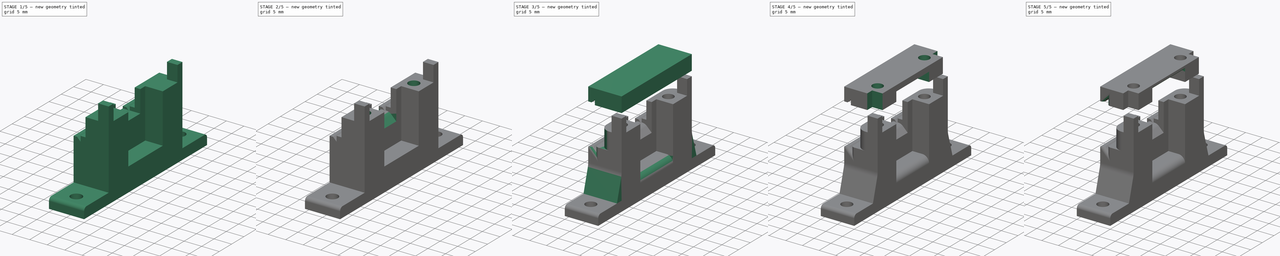
[diagram: build sequence overview — one tinted view per stage of 5, left to right]
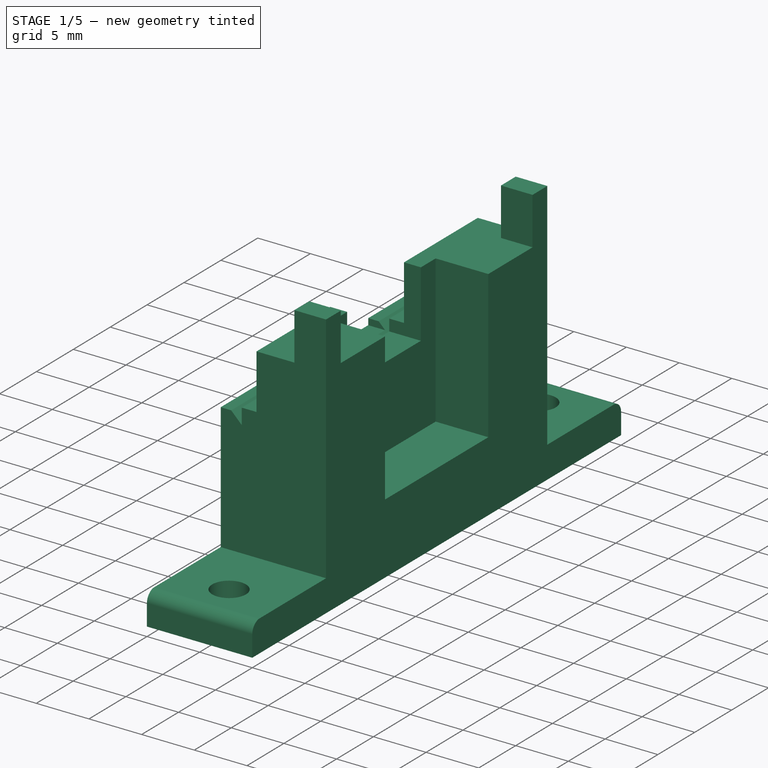
[diagram: stage 1 of 5 — iso view after this stage's code; geometry added in this stage tinted green]
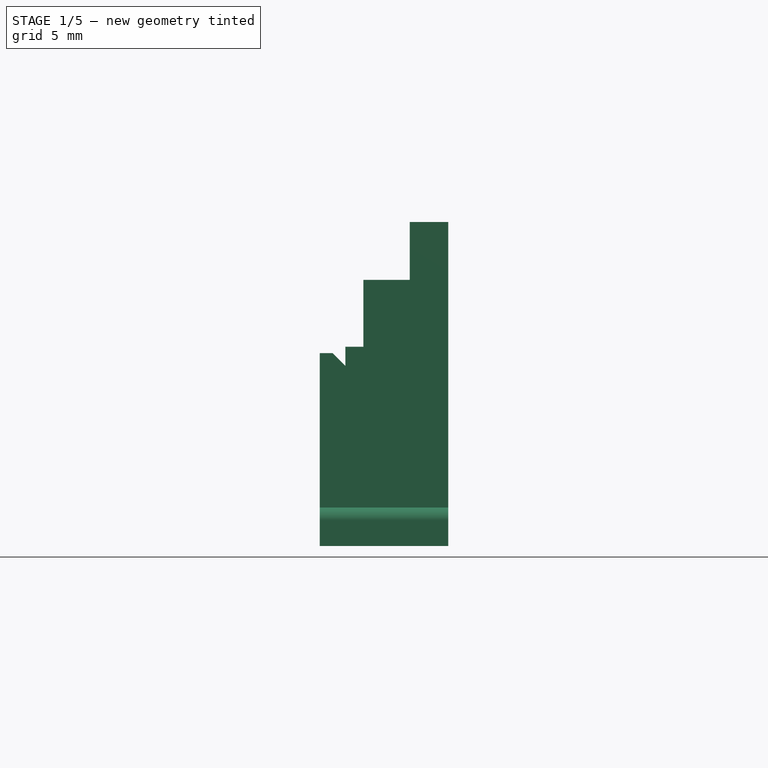
[diagram: stage 1 of 5 — front view after this stage's code; geometry added in this stage tinted green]
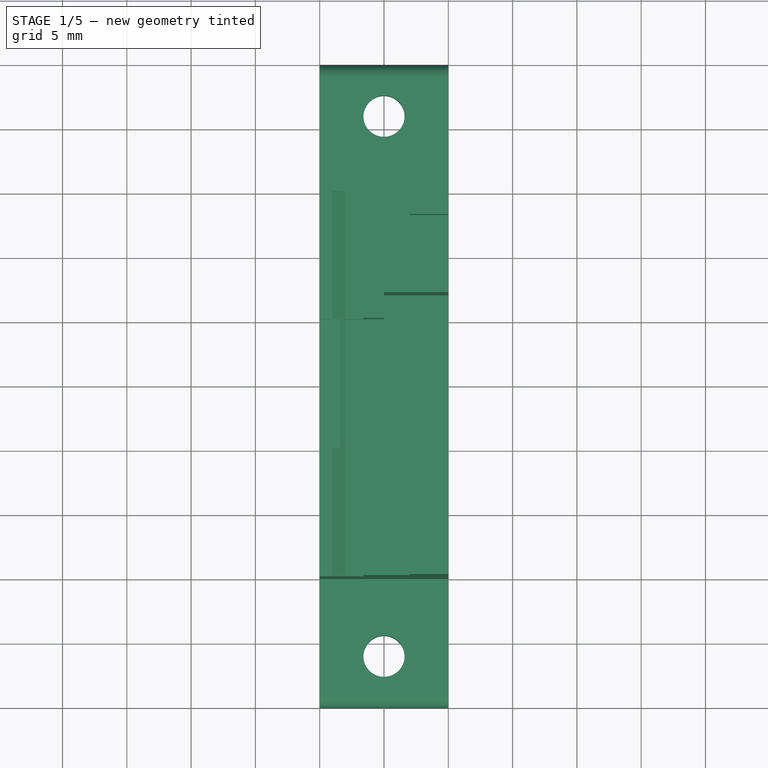
[diagram: stage 1 of 5 — top view after this stage's code; geometry added in this stage tinted green]
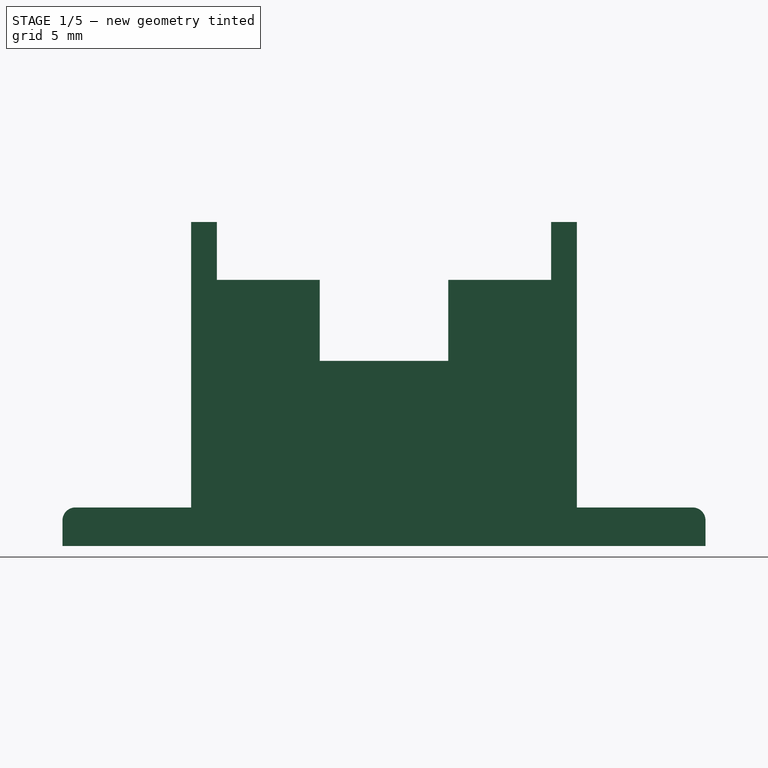
[diagram: stage 1 of 5 — right view after this stage's code; geometry added in this stage tinted green]
FCSTD DOCUMENT  (FreeCAD 0.14R3660 (Git) (Packman))
Label: gate2
License: CC-BY 3.0
LicenseURL: http://creativecommons.org/licenses/by/3.0/
objects: Sketcher::SketchObject×13, PartDesign::Fillet×13, PartDesign::Pocket×7, PartDesign::Pad×5, PartDesign::Chamfer×3
note: 53 computed .brp shape members not serialized (recipe doc carries the construction recipe); baked Part::Feature solids carry a one-line shape summary decoded from their .brp

FEATURE [Sketcher::SketchObject] Sketch
  Placement = pos=(0,0,0) rot=(1,0,0;1.5708rad)
  sketch-geometry (9):
    g0: LineSegment StartX=0 StartY=0 StartZ=0 EndX=10 EndY=0 EndZ=0
    g1: LineSegment StartX=3.4 StartY=20.7 StartZ=0 EndX=3.4 EndY=15.5 EndZ=0
    g2: LineSegment StartX=3.4 StartY=15.5 StartZ=0 EndX=2 EndY=15.5 EndZ=0
    g3: LineSegment StartX=2 StartY=15.5 StartZ=0 EndX=2 EndY=14 EndZ=0
    g4: LineSegment StartX=2 StartY=14 StartZ=0 EndX=1 EndY=15 EndZ=0
    g5: LineSegment StartX=1 StartY=15 StartZ=0 EndX=0 EndY=15 EndZ=0
    g6: LineSegment StartX=0 StartY=15 StartZ=0 EndX=0 EndY=0 EndZ=0
    g7: LineSegment StartX=10 StartY=0 StartZ=0 EndX=10 EndY=20.7 EndZ=0
    g8: LineSegment StartX=3.4 StartY=20.7 StartZ=0 EndX=10 EndY=20.7 EndZ=0
  constraints (26):
    c: Horizontal(g0)
    c: Vertical(g1)
    c: Coincident(g1,g2)
    c: Horizontal(g2)
    c: Coincident(g2,g3)
    c: Vertical(g3)
    c: Coincident(g3,g4)
    c: Coincident(g4,g5)
    c: Coincident(g5,g6)
    c: Coincident(g6,g-1)
    c: Vertical(g6)
    c: DistanceX(g0) = 10
    c: DistanceY(g-1,g3) = 14
    c: DistanceX(g1,g3) = -1.4
    c: DistanceY(g1,g3) = -1.5
    c: Horizontal(g5)
    c: Coincident(g0,g-1)
    c: DistanceY(g3,g5) = 1
    c: DistanceX(g2,g5) = -2
    c: Coincident(g7,g0)
    c: Vertical(g7)
    c: Angle(g3,g4) = 0.785398
    c: Coincident(g8,g1)
    c: Horizontal(g8)
    c: DistanceY(g1) = -5.2
    c: Coincident(g8,g7)
FEATURE [Sketcher::SketchObject] Sketch020
  Placement = pos=(0,0,0) rot=(1,0,0;3.14159rad)
  sketch-geometry (10):
    g0: LineSegment StartX=0 StartY=15 StartZ=0 EndX=10 EndY=15 EndZ=0
    g1: LineSegment StartX=10 StartY=15 StartZ=0 EndX=10 EndY=25 EndZ=0
    g2: LineSegment StartX=10 StartY=25 StartZ=0 EndX=0 EndY=25 EndZ=0
    g3: LineSegment StartX=0 StartY=25 StartZ=0 EndX=0 EndY=15 EndZ=0
    g4: LineSegment StartX=0 StartY=-15 StartZ=0 EndX=10 EndY=-15 EndZ=0
    g5: LineSegment StartX=10 StartY=-15 StartZ=0 EndX=10 EndY=-25 EndZ=0
    g6: LineSegment StartX=10 StartY=-25 StartZ=0 EndX=0 EndY=-25 EndZ=0
    g7: LineSegment StartX=0 StartY=-25 StartZ=0 EndX=0 EndY=-15 EndZ=0
    g8: Circle CenterX=5 CenterY=21 CenterZ=0 NormalX=0 NormalY=0 NormalZ=1 Radius=1.6
    g9: Circle CenterX=5 CenterY=-21 CenterZ=0 NormalX=0 NormalY=0 NormalZ=1 Radius=1.6
  constraints (36):
    c: Coincident(g0,g1)
    c: Coincident(g1,g2)
    c: Coincident(g2,g3)
    c: Coincident(g3,g0)
    c: PointOnObject(g0,g-2)
    c: Coincident(g4,g5)
    c: Coincident(g5,g6)
    c: Coincident(g6,g7)
    c: Coincident(g7,g4)
    c: PointOnObject(g4,g-2)
    c: Equal(g0,g4)
    c: Equal(g5,g4)
    c: Symmetric(g0,g4,g-1)
    c: DistanceY(g-1,g0) = 15
    c: Equal(g2,g1)
    c: Symmetric(g9,g8,g-1)
    c: DistanceX(g8,g0) = -5
    c: DistanceY(g8,g0) = -6
    c: Vertical(g1)
    c: Vertical(g3)
    c: Horizontal(g2)
    c: DistanceY(g1) = 10
    c: DistanceY(g7) = 10
    c: Horizontal(g6)
    c: Vertical(g5)
    c: Vertical(g7)
    c: Horizontal(g0)
    c: Equal(g7,g4)
    c: Equal(g4,g5)
    c: Equal(g5,g6)
    c: Equal(g3,g2)
    c: Equal(g2,g1)
    c: Equal(g1,g0)
    c: Equal(g3,g2)
    c: Radius(g8) = 1.6
    c: Equal(g9,g8)
FEATURE [PartDesign::Pad] Pad002
  Length = 3
  Length2 = 100
  Placement = pos=(0,0,0) rot=(1,0,0;3.14159rad)
  Reversed = true
  Sketch = -> Sketch020
  Type = 0
FEATURE [Sketcher::SketchObject] Sketch001
  Placement = pos=(0,0,0) rot=(1,0,0;1.5708rad)
  sketch-geometry (7):
    g0: LineSegment StartX=2 StartY=26.7 StartZ=0 EndX=2 EndY=28.2 EndZ=0
    g1: LineSegment StartX=2 StartY=28.2 StartZ=0 EndX=1 EndY=27.2 EndZ=0
    g2: LineSegment StartX=1 StartY=27.2 StartZ=0 EndX=0 EndY=27.2 EndZ=0
    g3: LineSegment StartX=0 StartY=27.2 StartZ=0 EndX=0 EndY=31.2 EndZ=0
    g4: LineSegment StartX=0 StartY=31.2 StartZ=0 EndX=10 EndY=31.2 EndZ=0
    g5: LineSegment StartX=2 StartY=26.7 StartZ=0 EndX=10 EndY=26.7 EndZ=0
    g6: LineSegment StartX=10 StartY=31.2 StartZ=0 EndX=10 EndY=26.7 EndZ=0
  constraints (20):
    c: Coincident(g0,g1)
    c: Coincident(g1,g2)
    c: Coincident(g2,g3)
    c: Coincident(g3,g4)
    c: DistanceY(g-1,g0) = 28.2
    c: DistanceY(g0,g0) = 1.5
    c: DistanceX(g1,g0) = 1
    c: DistanceX(g2,g0) = 2
    c: DistanceX(g3,g4) = 10
    c: Tangent(g3,g-2)
    c: Coincident(g5,g0)
    c: Coincident(g6,g4)
    c: Vertical(g6)
    c: Horizontal(g4)
    c: Vertical(g0)
    c: Horizontal(g5)
    c: Horizontal(g2)
    c: Angle(g1,g0) = 0.785398
    c: Coincident(g5,g6)
    c: DistanceY(g6) = -4.5
FEATURE [PartDesign::Pad] Pad
  Length = 30
  Length2 = 100
  Midplane = true
  Placement = pos=(0,0,0) rot=(1,0,0;1.5708rad)
  Sketch = -> Sketch
  Type = 0
FEATURE [Sketcher::SketchObject] Sketch021
  Placement = pos=(0,0,31.5) rot=(0,0,1;3.14159rad)
FEATURE [Sketcher::SketchObject] Sketch022
  ExternalGeometry = -> [Pad]
  Placement = pos=(0,0,20.7) rot=(0,0,1;3.14159rad)
  Support = -> Pad [Face9]
  sketch-geometry (8):
    g0: LineSegment StartX=-10 StartY=15 StartZ=0 EndX=-7 EndY=15 EndZ=0
    g1: LineSegment StartX=-7 StartY=15 StartZ=0 EndX=-7 EndY=13 EndZ=0
    g2: LineSegment StartX=-7 StartY=13 StartZ=0 EndX=-10 EndY=13 EndZ=0
    g3: LineSegment StartX=-10 StartY=13 StartZ=0 EndX=-10 EndY=15 EndZ=0
    g4: LineSegment StartX=-10 StartY=-15 StartZ=0 EndX=-7 EndY=-15 EndZ=0
    g5: LineSegment StartX=-7 StartY=-15 StartZ=0 EndX=-7 EndY=-13 EndZ=0
    g6: LineSegment StartX=-7 StartY=-13 StartZ=0 EndX=-10 EndY=-13 EndZ=0
    g7: LineSegment StartX=-10 StartY=-13 StartZ=0 EndX=-10 EndY=-15 EndZ=0
  constraints (23):
    c: Coincident(g0,g1)
    c: Coincident(g1,g2)
    c: Coincident(g2,g3)
    c: Coincident(g3,g0)
    c: Horizontal(g0)
    c: Horizontal(g2)
    c: Vertical(g1)
    c: Vertical(g3)
    c: Coincident(g4,g5)
    c: Coincident(g5,g6)
    c: Coincident(g6,g7)
    c: Coincident(g7,g4)
    c: Horizontal(g4)
    c: Horizontal(g6)
    c: Vertical(g5)
    c: Vertical(g7)
    c: Symmetric(g5,g1,g-1)
    c: PointOnObject(g2,g-4)
    c: PointOnObject(g0,g-3)
    c: DistanceY(g3) = 2
    c: DistanceX(g0) = 3
    c: Equal(g6,g2)
    c: Equal(g5,g1)
FEATURE [PartDesign::Pad] Pad003
  Length = 4.5
  Length2 = 100
  Placement = pos=(0,0,0) rot=(1,0,0;1.5708rad)
  Sketch = -> Sketch022
  Type = 0
FEATURE [Sketcher::SketchObject] Sketch024
  ExternalGeometry = -> [Pad003]
  Placement = pos=(10,0,0) rot=(0.707107,0,0.707107;3.14159rad)
  Support = -> Pad003 [Face8]
  sketch-geometry (4):
    g0: LineSegment StartX=6.7 StartY=7 StartZ=0 EndX=20.7 EndY=7 EndZ=0
    g1: LineSegment StartX=20.7 StartY=7 StartZ=0 EndX=20.7 EndY=-7 EndZ=0
    g2: LineSegment StartX=20.7 StartY=-7 StartZ=0 EndX=6.7 EndY=-7 EndZ=0
    g3: LineSegment StartX=6.7 StartY=-7 StartZ=0 EndX=6.7 EndY=7 EndZ=0
  constraints (12):
    c: Coincident(g0,g1)
    c: Coincident(g1,g2)
    c: Coincident(g2,g3)
    c: Coincident(g3,g0)
    c: Horizontal(g0)
    c: Horizontal(g2)
    c: Vertical(g1)
    c: Vertical(g3)
    c: PointOnObject(g0,g-3)
    c: Symmetric(g0,g2,g-1)
    c: DistanceX(g0) = 14
    c: DistanceY(g3) = 14
FEATURE [PartDesign::Pocket] Pocket001
  Length = 5
  Placement = pos=(0,0,0) rot=(1,0,0;1.5708rad)
  Sketch = -> Sketch024
  Type = 0
FEATURE [Sketcher::SketchObject] Sketch025
  ExternalGeometry = -> [Pocket001]
  Placement = pos=(5,0,0) rot=(0.707107,0,0.707107;3.14159rad)
  Support = -> Pocket001 [Face10]
  sketch-geometry (4):
    g0: LineSegment StartX=14.4 StartY=5 StartZ=0 EndX=20.7 EndY=5 EndZ=0
    g1: LineSegment StartX=20.7 StartY=5 StartZ=0 EndX=20.7 EndY=-5 EndZ=0
    g2: LineSegment StartX=20.7 StartY=-5 StartZ=0 EndX=14.4 EndY=-5 EndZ=0
    g3: LineSegment StartX=14.4 StartY=-5 StartZ=0 EndX=14.4 EndY=5 EndZ=0
  constraints (12):
    c: Coincident(g0,g1)
    c: Coincident(g1,g2)
    c: Coincident(g2,g3)
    c: Coincident(g3,g0)
    c: Horizontal(g0)
    c: Horizontal(g2)
    c: Vertical(g1)
    c: Vertical(g3)
    c: Symmetric(g0,g2,g-1)
    c: DistanceX(g0) = 6.3
    c: DistanceY(g3) = 10
    c: DistanceX(g0) = 14.4
FEATURE [PartDesign::Pocket] Pocket002
  Length = 5
  Placement = pos=(0,0,0) rot=(1,0,0;1.5708rad)
  Sketch = -> Sketch025
  Type = 1
FEATURE [PartDesign::Fillet] Fillet012
  Base = -> Pad002 [Edge25,Edge10]
  Placement = pos=(0,0,0) rot=(1,0,0;3.14159rad)
  Radius = 1
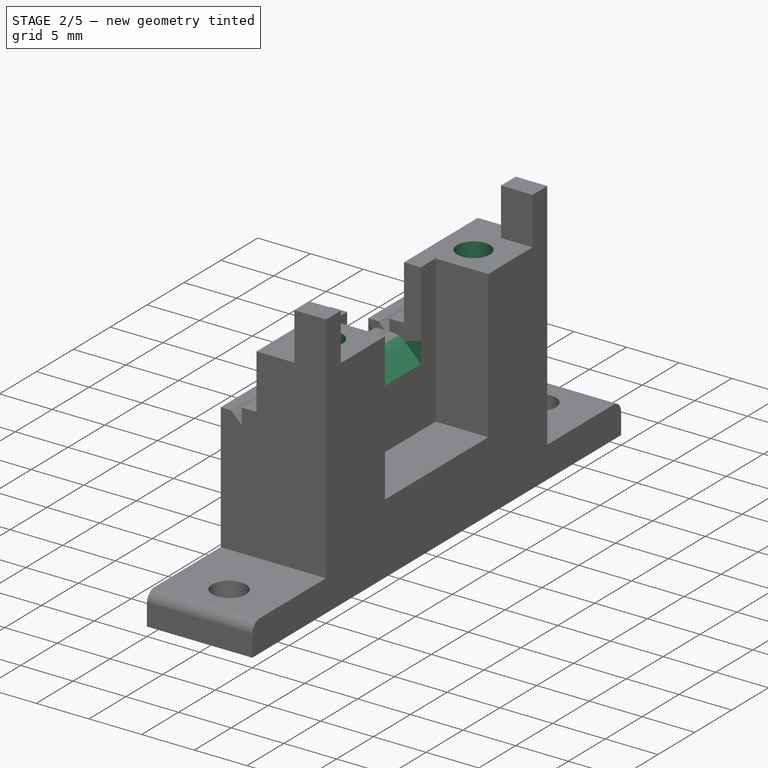
[diagram: stage 2 of 5 — iso view after this stage's code; geometry added in this stage tinted green]
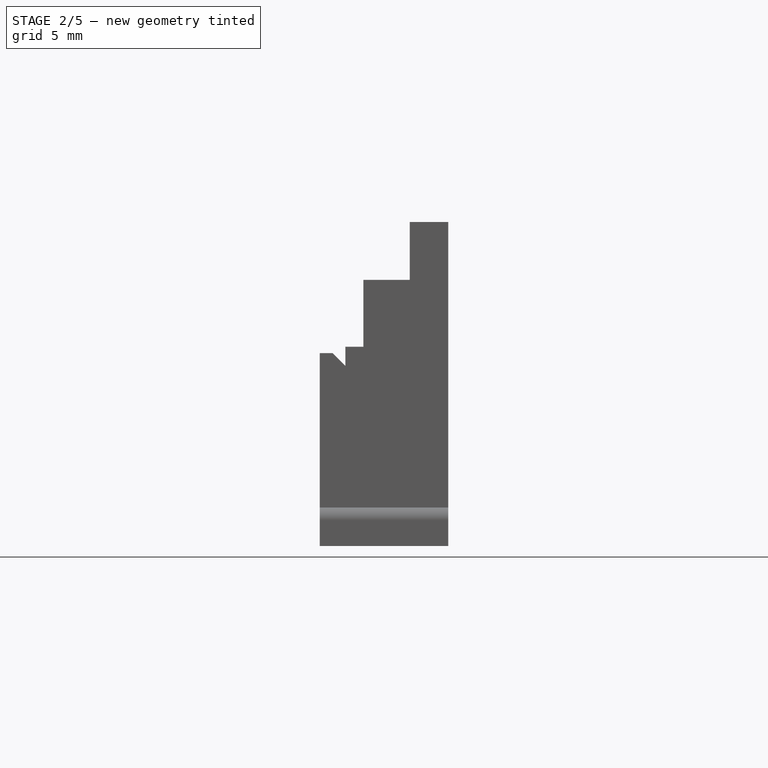
[diagram: stage 2 of 5 — front view after this stage's code; geometry added in this stage tinted green]
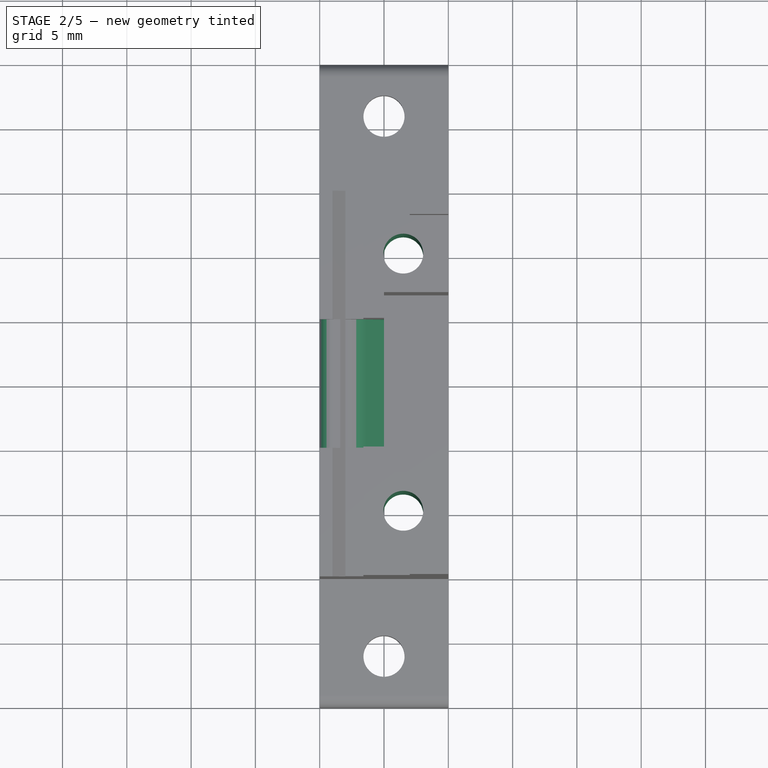
[diagram: stage 2 of 5 — top view after this stage's code; geometry added in this stage tinted green]
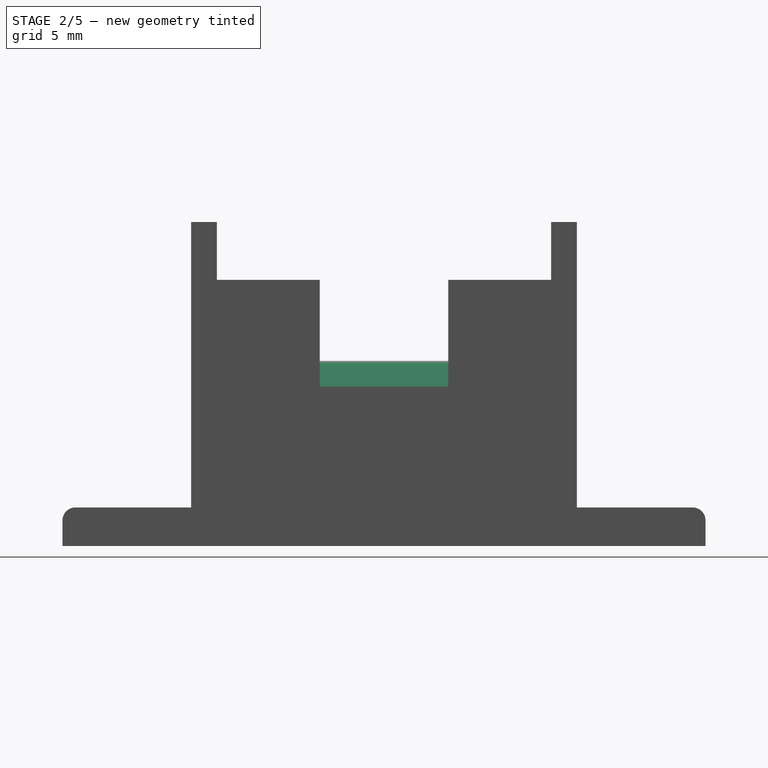
[diagram: stage 2 of 5 — right view after this stage's code; geometry added in this stage tinted green]
FEATURE [Sketcher::SketchObject] Sketch028
  ExternalGeometry = -> [Pocket002]
  Placement = pos=(0,0,20.7) rot=(0,0,1;3.14159rad)
  Support = -> Pocket002 [Face25]
  sketch-geometry (2):
    g0: Circle CenterX=-6.5 CenterY=10 CenterZ=0 NormalX=0 NormalY=0 NormalZ=1 Radius=1.55
    g1: Circle CenterX=-6.5 CenterY=-10 CenterZ=0 NormalX=0 NormalY=0 NormalZ=1 Radius=1.55
  constraints (5):
    c: Radius(g0) = 1.55
    c: Symmetric(g1,g0,g-1)
    c: Equal(g1,g0)
    c: DistanceY(g0,g-3) = 5
    c: DistanceX(g0,g-4) = -3.5
FEATURE [PartDesign::Pocket] Pocket005
  Length = 5
  Placement = pos=(0,0,0) rot=(1,0,0;1.5708rad)
  Sketch = -> Sketch028
  Type = 1
FEATURE [Sketcher::SketchObject] Sketch029
  ExternalGeometry = -> [Pocket005]
  Placement = pos=(0,0,0) rot=(1,0,0;3.14159rad)
  Support = -> Pocket005 [Face10]
  sketch-geometry (18):
    g0: LineSegment StartX=9.3 StartY=11.6166 StartZ=0 EndX=9.3 EndY=8.38342 EndZ=0
    g1: LineSegment StartX=9.3 StartY=8.38342 StartZ=0 EndX=6.5 EndY=6.76684 EndZ=0
    g2: LineSegment StartX=6.5 StartY=6.76684 StartZ=0 EndX=3.7 EndY=8.38342 EndZ=0
    g3: LineSegment StartX=3.7 StartY=8.38342 StartZ=0 EndX=3.7 EndY=11.6166 EndZ=0
    g4: LineSegment StartX=3.7 StartY=11.6166 StartZ=0 EndX=6.5 EndY=13.2332 EndZ=0
    g5: LineSegment StartX=6.5 StartY=13.2332 StartZ=0 EndX=9.3 EndY=11.6166 EndZ=0
    g6: LineSegment StartX=6.5 StartY=-6.76684 StartZ=0 EndX=9.3 EndY=-8.38342 EndZ=0
    g7: LineSegment StartX=9.3 StartY=-8.38342 StartZ=0 EndX=9.3 EndY=-11.6166 EndZ=0
    g8: LineSegment StartX=9.3 StartY=-11.6166 StartZ=0 EndX=6.5 EndY=-13.2332 EndZ=0
    g9: LineSegment StartX=6.5 StartY=-13.2332 StartZ=0 EndX=3.7 EndY=-11.6166 EndZ=0
    g10: LineSegment StartX=3.7 StartY=-11.6166 StartZ=0 EndX=3.7 EndY=-8.38342 EndZ=0
    g11: LineSegment StartX=3.7 StartY=-8.38342 StartZ=0 EndX=6.5 EndY=-6.76684 EndZ=0
    g12: LineSegment [constr] StartX=6.5 StartY=6.76684 StartZ=0 EndX=6.5 EndY=13.2332 EndZ=0
    g13: LineSegment [constr] StartX=3.7 StartY=11.6166 StartZ=0 EndX=9.3 EndY=8.38342 EndZ=0
    g14: LineSegment [constr] StartX=9.3 StartY=11.6166 StartZ=0 EndX=3.7 EndY=8.38342 EndZ=0
    g15: LineSegment [constr] StartX=6.5 StartY=-6.76684 StartZ=0 EndX=6.5 EndY=-13.2332 EndZ=0
    g16: LineSegment [constr] StartX=3.7 StartY=-11.6166 StartZ=0 EndX=9.3 EndY=-8.38342 EndZ=0
    g17: LineSegment [constr] StartX=3.7 StartY=-8.38342 StartZ=0 EndX=9.3 EndY=-11.6166 EndZ=0
  constraints (49):
    c: Vertical(g0)
    c: Coincident(g0,g1)
    c: Coincident(g1,g2)
    c: Coincident(g2,g3)
    c: Vertical(g3)
    c: Coincident(g3,g4)
    c: Coincident(g4,g5)
    c: Coincident(g5,g0)
    c: Coincident(g6,g7)
    c: Vertical(g7)
    c: Coincident(g7,g8)
    c: Coincident(g8,g9)
    c: Coincident(g9,g10)
    c: Vertical(g10)
    c: Coincident(g10,g11)
    c: Coincident(g11,g6)
    c: Equal(g2,g1)
    c: Equal(g1,g0)
    c: Equal(g0,g3)
    c: Equal(g3,g4)
    c: Equal(g4,g5)
    c: DistanceX(g3,g0) = 5.6
    c: Symmetric(g6,g1,g-1)
    c: Equal(g11,g6)
    c: Equal(g6,g7)
    c: Equal(g7,g8)
    c: Equal(g8,g9)
    c: Equal(g9,g10)
    c: Equal(g10,g1)
    c: Coincident(g12,g4)
    c: Vertical(g12)
    c: Coincident(g13,g3)
    c: Coincident(g13,g0)
    c: Coincident(g14,g0)
    c: Coincident(g14,g2)
    c: Coincident(g12,g1)
    c: Equal(g12,g13)
    c: Equal(g13,g14)
    c: Coincident(g15,g6)
    c: Coincident(g15,g8)
    c: Vertical(g15)
    c: Coincident(g16,g9)
    c: Coincident(g16,g6)
    c: Coincident(g17,g10)
    c: Coincident(g17,g7)
    c: Equal(g16,g17)
    c: Equal(g17,g15)
    c: PointOnObject(g-3,g15)
    c: PointOnObject(g-3,g16)
FEATURE [PartDesign::Pocket] Pocket006
  Length = 4
  Placement = pos=(0,0,0) rot=(1,0,0;1.5708rad)
  Sketch = -> Sketch029
  Type = 0
FEATURE [PartDesign::Chamfer] Chamfer001
  Base = -> Pocket006 [Edge72]
  Placement = pos=(0,0,0) rot=(1,0,0;1.5708rad)
  Size = 2
FEATURE [PartDesign::Fillet] Fillet001
  Base = -> Chamfer001 [Edge10]
  Placement = pos=(0,0,0) rot=(1,0,0;1.5708rad)
  Radius = 2
FEATURE [PartDesign::Fillet] Fillet006
  Base = -> Fillet001 [Edge104]
  Placement = pos=(0,0,0) rot=(1,0,0;1.5708rad)
  Radius = 1
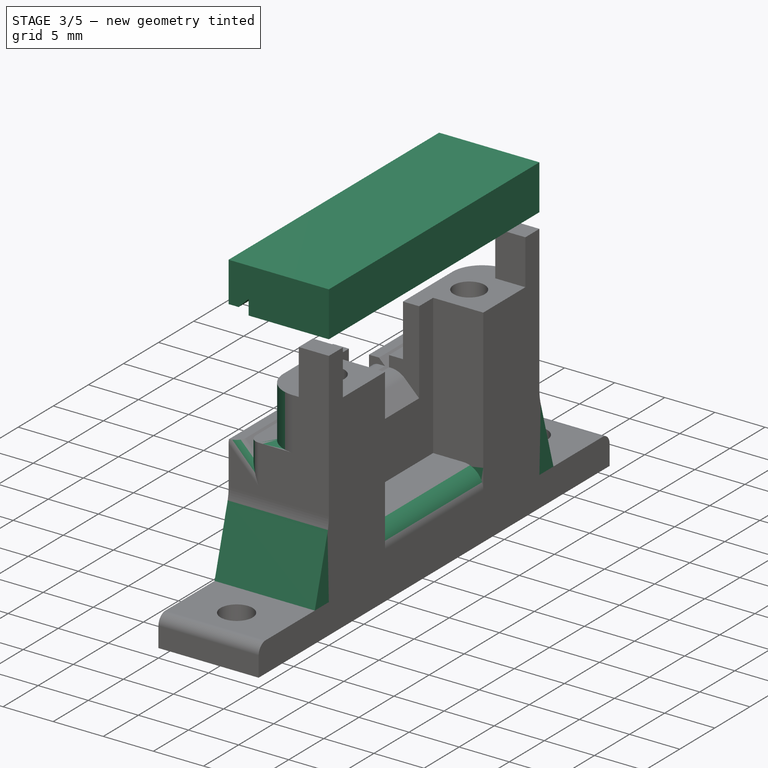
[diagram: stage 3 of 5 — iso view after this stage's code; geometry added in this stage tinted green]
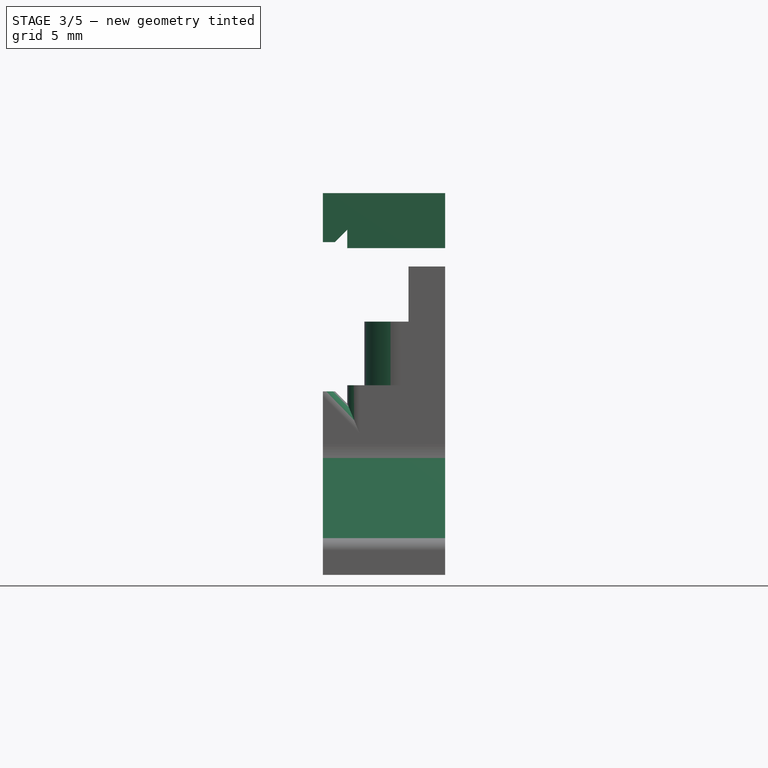
[diagram: stage 3 of 5 — front view after this stage's code; geometry added in this stage tinted green]
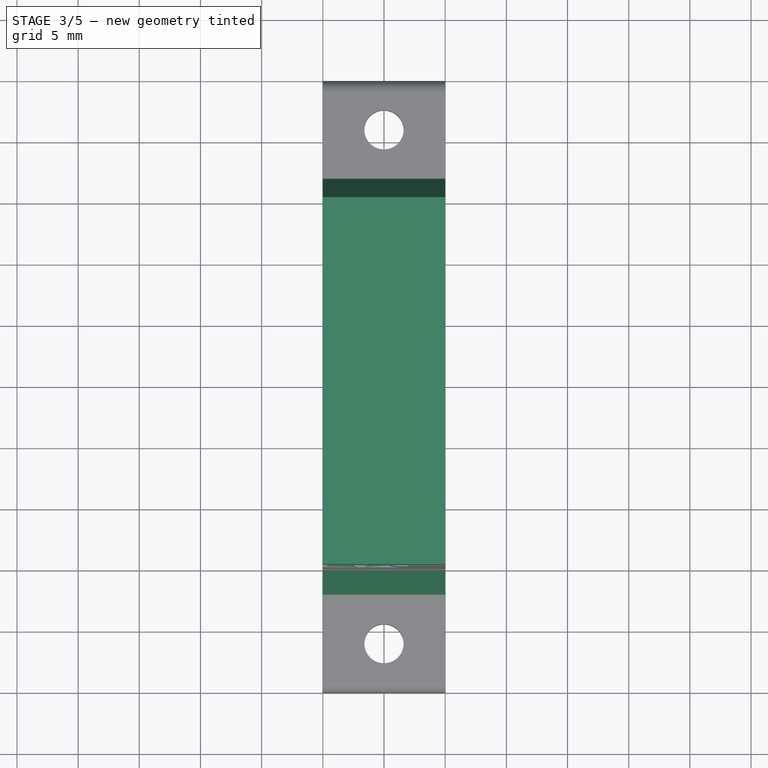
[diagram: stage 3 of 5 — top view after this stage's code; geometry added in this stage tinted green]
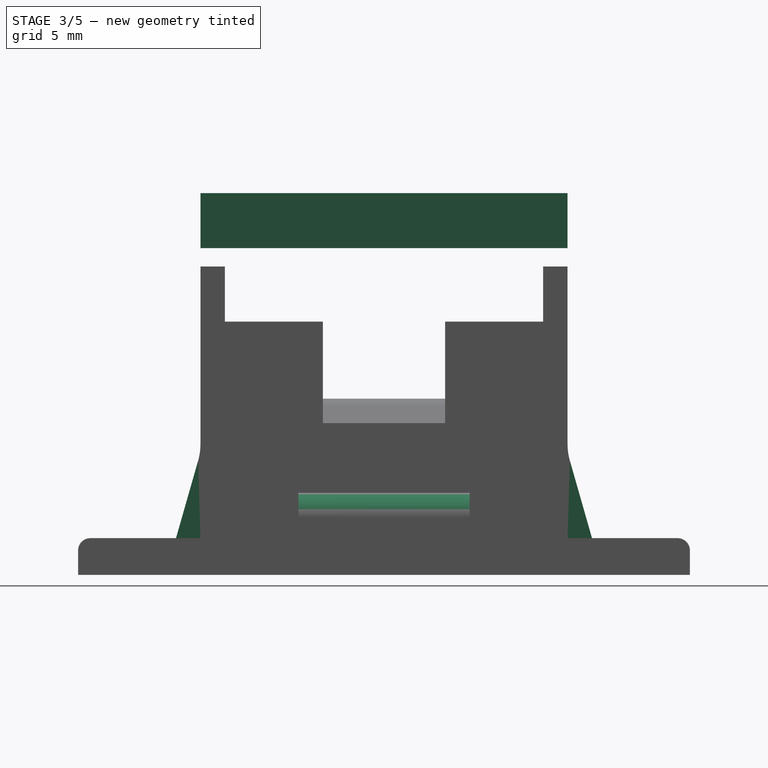
[diagram: stage 3 of 5 — right view after this stage's code; geometry added in this stage tinted green]
FEATURE [PartDesign::Pad] Pad004
  Length = 30
  Length2 = 100
  Midplane = true
  Placement = pos=(0,0,0) rot=(1,0,0;1.5708rad)
  Sketch = -> Sketch001
  Type = 0
FEATURE [PartDesign::Fillet] Fillet008
  Base = -> Fillet006 [Edge50,Edge52,Edge28,Edge26]
  Placement = pos=(0,0,0) rot=(1,0,0;1.5708rad)
  Radius = 1
FEATURE [PartDesign::Fillet] Fillet009
  Base = -> Fillet008 [Edge47,Edge24]
  Placement = pos=(0,0,0) rot=(1,0,0;1.5708rad)
  Radius = 3
FEATURE [PartDesign::Fillet] Fillet010
  Base = -> Fillet009 [Edge31]
  Placement = pos=(0,0,0) rot=(1,0,0;1.5708rad)
  Radius = 2
FEATURE [Sketcher::SketchObject] Sketch030
  ExternalGeometry = -> [Fillet010]
  Placement = pos=(10,0,0) rot=(0.707107,0,0.707107;3.14159rad)
  Support = -> Fillet010 [Face1]
  sketch-geometry (6):
    g0: LineSegment StartX=3 StartY=15 StartZ=0 EndX=10 EndY=15 EndZ=0
    g1: LineSegment StartX=10 StartY=15 StartZ=0 EndX=3 EndY=17 EndZ=0
    g2: LineSegment StartX=3 StartY=17 StartZ=0 EndX=3 EndY=15 EndZ=0
    g3: LineSegment StartX=3 StartY=-17 StartZ=0 EndX=10 EndY=-15 EndZ=0
    g4: LineSegment StartX=10 StartY=-15 StartZ=0 EndX=3 EndY=-15 EndZ=0
    g5: LineSegment StartX=3 StartY=-15 StartZ=0 EndX=3 EndY=-17 EndZ=0
  constraints (17):
    c: Horizontal(g0)
    c: Coincident(g0,g1)
    c: Coincident(g1,g2)
    c: Vertical(g2)
    c: Coincident(g0,g2)
    c: DistanceX(g0) = 7
    c: DistanceY(g2) = -2
    c: DistanceX(g-1,g0) = 3
    c: PointOnObject(g0,g-3)
    c: Coincident(g3,g4)
    c: Horizontal(g4)
    c: Coincident(g4,g5)
    c: Coincident(g5,g3)
    c: Vertical(g5)
    c: Equal(g3,g1)
    c: Equal(g5,g2)
    c: Symmetric(g4,g0,g-1)
FEATURE [PartDesign::Pad] Pad005
  Length = 10
  Length2 = 100
  Placement = pos=(0,0,0) rot=(1,0,0;1.5708rad)
  Reversed = true
  Sketch = -> Sketch030
  Type = 0
FEATURE [PartDesign::Fillet] Fillet011
  Base = -> Pad005 [Edge81,Edge65]
  Placement = pos=(0,0,0) rot=(1,0,0;1.5708rad)
  Radius = 5
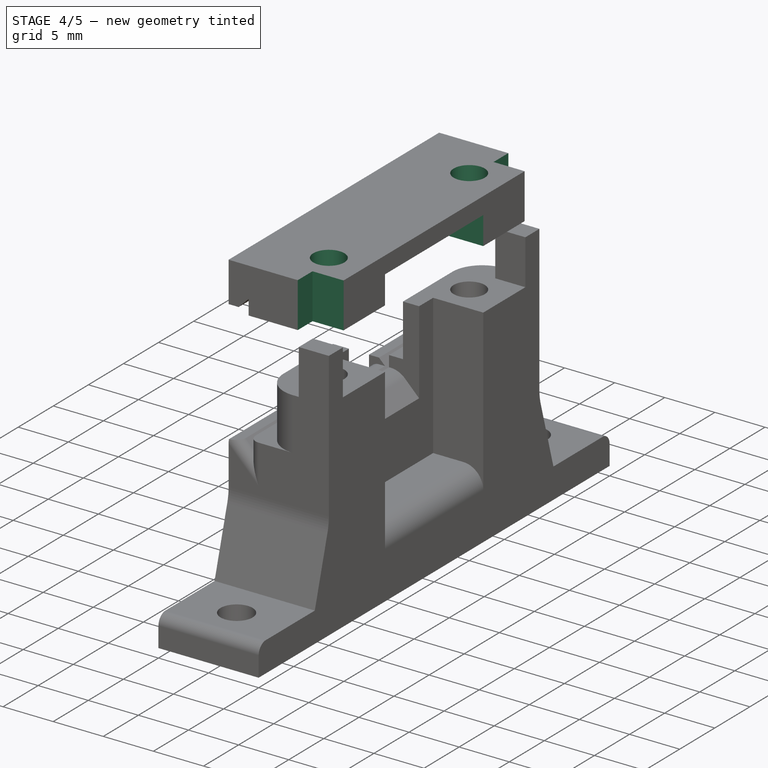
[diagram: stage 4 of 5 — iso view after this stage's code; geometry added in this stage tinted green]
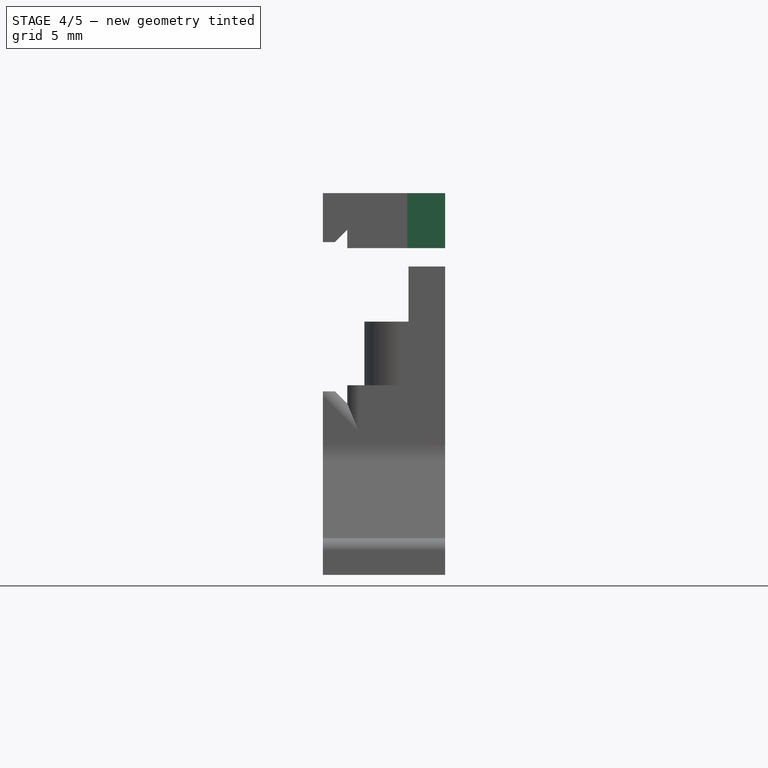
[diagram: stage 4 of 5 — front view after this stage's code; geometry added in this stage tinted green]
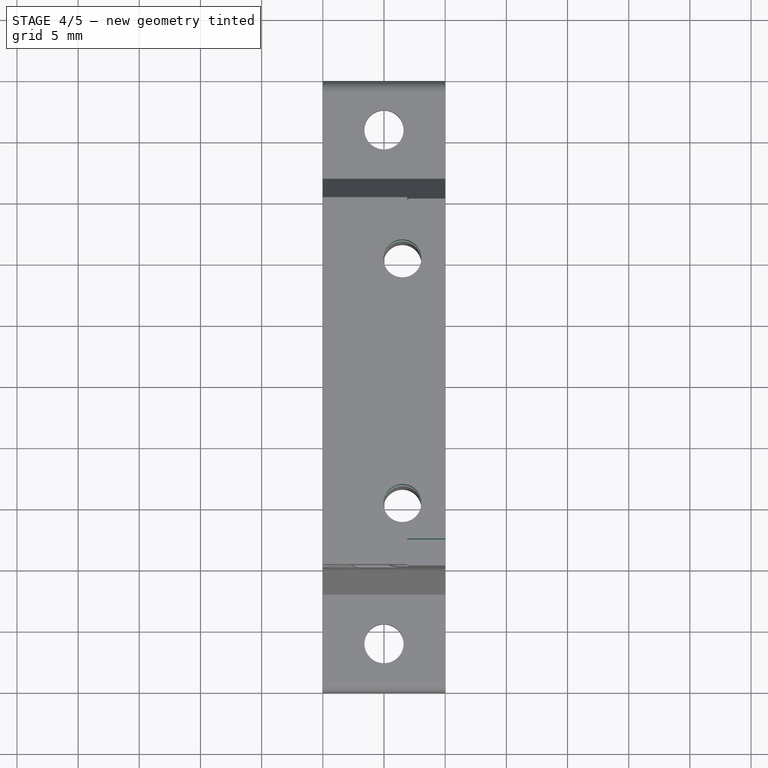
[diagram: stage 4 of 5 — top view after this stage's code; geometry added in this stage tinted green]
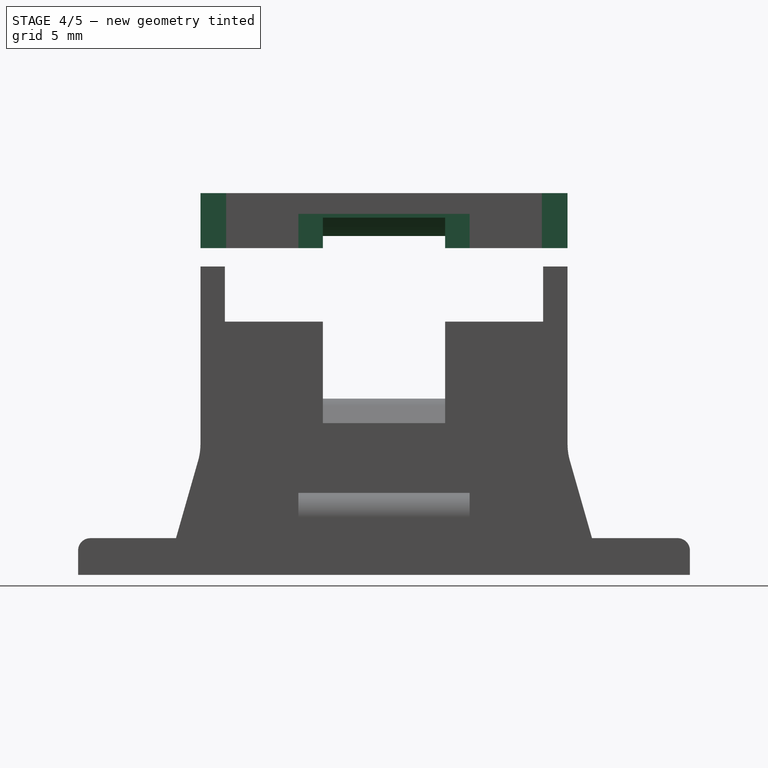
[diagram: stage 4 of 5 — right view after this stage's code; geometry added in this stage tinted green]
FEATURE [Sketcher::SketchObject] Sketch023
  ExternalGeometry = -> [Pad004]
  Placement = pos=(0,0,31.2) rot=(0,0,1;3.14159rad)
  Support = -> Pad004 [Face5]
  sketch-geometry (10):
    g0: LineSegment StartX=-10 StartY=-12.9 StartZ=0 EndX=-6.9 EndY=-12.9 EndZ=0
    g1: LineSegment StartX=-6.9 StartY=-12.9 StartZ=0 EndX=-6.9 EndY=-15 EndZ=0
    g2: LineSegment StartX=-6.9 StartY=-15 StartZ=0 EndX=-10 EndY=-15 EndZ=0
    g3: LineSegment StartX=-10 StartY=-15 StartZ=0 EndX=-10 EndY=-12.9 EndZ=0
    g4: LineSegment StartX=-10 StartY=15 StartZ=0 EndX=-6.9 EndY=15 EndZ=0
    g5: LineSegment StartX=-6.9 StartY=15 StartZ=0 EndX=-6.9 EndY=12.9 EndZ=0
    g6: LineSegment StartX=-6.9 StartY=12.9 StartZ=0 EndX=-10 EndY=12.9 EndZ=0
    g7: LineSegment StartX=-10 StartY=12.9 StartZ=0 EndX=-10 EndY=15 EndZ=0
    g8: Circle CenterX=-6.5 CenterY=10 CenterZ=0 NormalX=0 NormalY=0 NormalZ=1 Radius=1.55
    g9: Circle CenterX=-6.5 CenterY=-10 CenterZ=0 NormalX=0 NormalY=0 NormalZ=1 Radius=1.55
  constraints (28):
    c: Coincident(g0,g1)
    c: Coincident(g1,g2)
    c: Coincident(g2,g3)
    c: Coincident(g3,g0)
    c: Horizontal(g0)
    c: Horizontal(g2)
    c: Vertical(g1)
    c: Vertical(g3)
    c: Coincident(g4,g5)
    c: Coincident(g5,g6)
    c: Coincident(g6,g7)
    c: Coincident(g7,g4)
    c: Horizontal(g4)
    c: Horizontal(g6)
    c: Vertical(g5)
    c: Vertical(g7)
    c: DistanceX(g4) = 3.1
    c: DistanceY(g7) = 2.1
    c: PointOnObject(g6,g-3)
    c: PointOnObject(g4,g-4)
    c: Equal(g0,g6)
    c: Equal(g1,g5)
    c: Symmetric(g6,g0,g-1)
    c: Symmetric(g8,g9,g-1)
    c: Equal(g8,g9)
    c: Radius(g8) = 1.55
    c: DistanceX(g8,g4) = -3.5
    c: DistanceY(g8,g4) = 5
FEATURE [PartDesign::Pocket] Pocket
  Length = 5
  Placement = pos=(0,0,0) rot=(1,0,0;1.5708rad)
  Sketch = -> Sketch023
  Type = 1
FEATURE [Sketcher::SketchObject] Sketch026
  Placement = pos=(10,0,0) rot=(0.707107,0,0.707107;3.14159rad)
  Support = -> Pocket [Face8]
  sketch-geometry (4):
    g0: LineSegment StartX=26.7 StartY=7 StartZ=0 EndX=29.5 EndY=7 EndZ=0
    g1: LineSegment StartX=29.5 StartY=7 StartZ=0 EndX=29.5 EndY=-7 EndZ=0
    g2: LineSegment StartX=29.5 StartY=-7 StartZ=0 EndX=26.7 EndY=-7 EndZ=0
    g3: LineSegment StartX=26.7 StartY=-7 StartZ=0 EndX=26.7 EndY=7 EndZ=0
  constraints (11):
    c: Coincident(g0,g1)
    c: Coincident(g1,g2)
    c: Coincident(g2,g3)
    c: Coincident(g3,g0)
    c: Horizontal(g0)
    c: Horizontal(g2)
    c: Vertical(g1)
    c: Vertical(g3)
    c: Symmetric(g0,g1,g-1)
    c: DistanceY(g1) = -14
    c: DistanceX(g0) = 2.8
FEATURE [PartDesign::Pocket] Pocket003
  Length = 5
  Placement = pos=(0,0,0) rot=(1,0,0;1.5708rad)
  Sketch = -> Sketch026
  Type = 0
FEATURE [Sketcher::SketchObject] Sketch027
  Placement = pos=(5,0,0) rot=(0.707107,0,0.707107;3.14159rad)
  Support = -> Pocket003 [Face10]
  sketch-geometry (4):
    g0: LineSegment StartX=26.7 StartY=5 StartZ=0 EndX=27.7 EndY=5 EndZ=0
    g1: LineSegment StartX=27.7 StartY=5 StartZ=0 EndX=27.7 EndY=-5 EndZ=0
    g2: LineSegment StartX=27.7 StartY=-5 StartZ=0 EndX=26.7 EndY=-5 EndZ=0
    g3: LineSegment StartX=26.7 StartY=-5 StartZ=0 EndX=26.7 EndY=5 EndZ=0
  constraints (11):
    c: Coincident(g0,g1)
    c: Coincident(g1,g2)
    c: Coincident(g2,g3)
    c: Coincident(g3,g0)
    c: Horizontal(g0)
    c: Horizontal(g2)
    c: Vertical(g1)
    c: Vertical(g3)
    c: Symmetric(g0,g1,g-1)
    c: DistanceY(g1) = -10
    c: DistanceX(g0) = 1
FEATURE [PartDesign::Pocket] Pocket004
  Length = 5
  Placement = pos=(0,0,0) rot=(1,0,0;1.5708rad)
  Sketch = -> Sketch027
  Type = 1
FEATURE [PartDesign::Chamfer] Chamfer
  Base = -> Pocket004 [Edge35]
  Placement = pos=(0,0,0) rot=(1,0,0;1.5708rad)
  Size = 1.5
FEATURE [PartDesign::Fillet] Fillet
  Base = -> Chamfer [Edge8]
  Placement = pos=(0,0,0) rot=(1,0,0;1.5708rad)
  Radius = 3
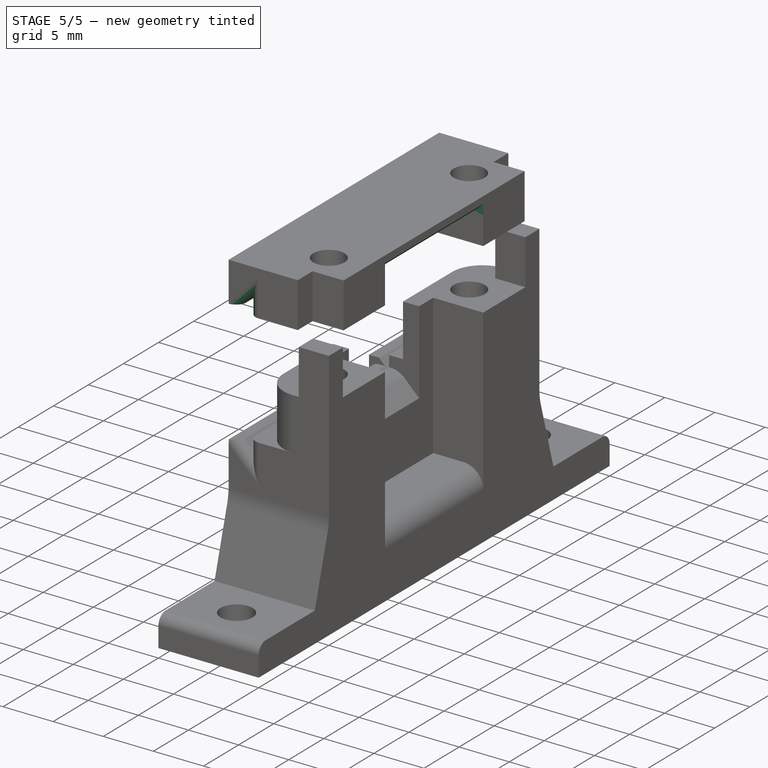
[diagram: stage 5 of 5 — iso view after this stage's code; geometry added in this stage tinted green]
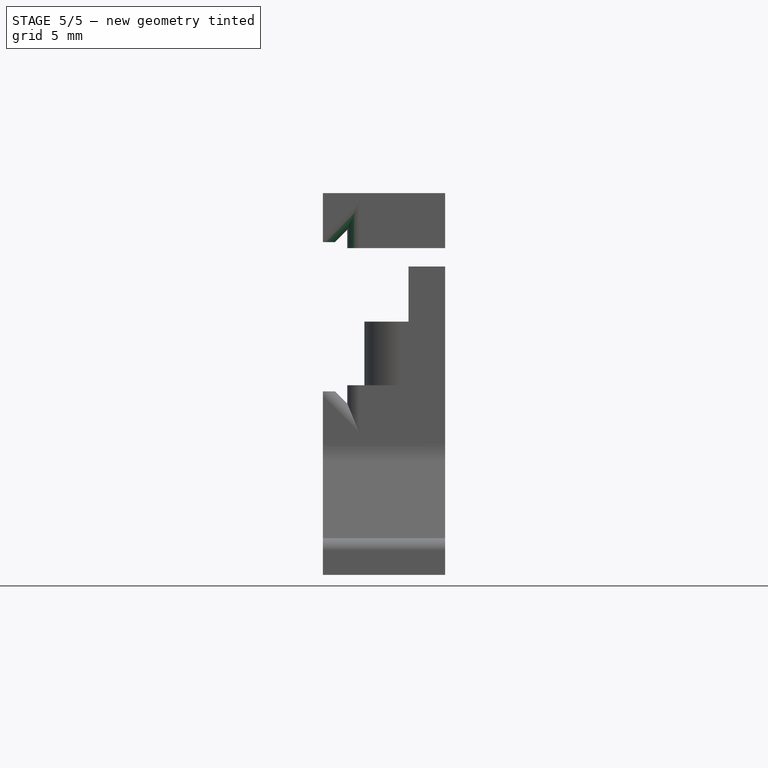
[diagram: stage 5 of 5 — front view after this stage's code; geometry added in this stage tinted green]
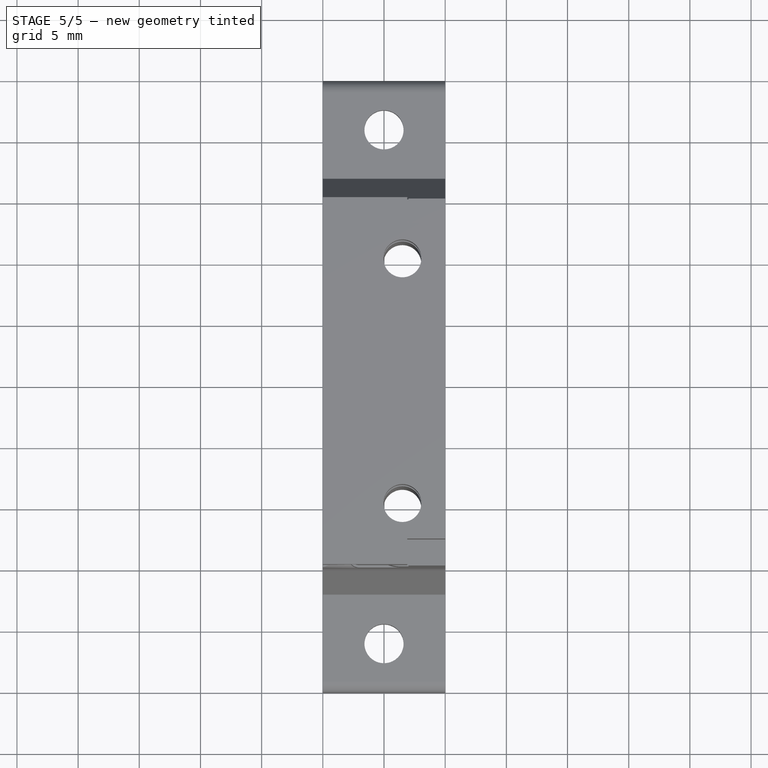
[diagram: stage 5 of 5 — top view after this stage's code; geometry added in this stage tinted green]
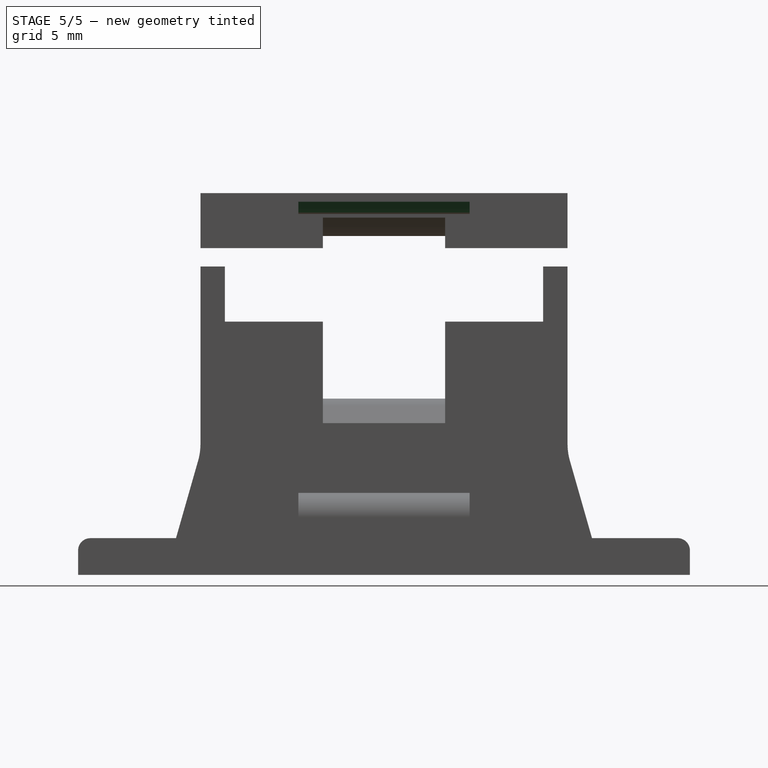
[diagram: stage 5 of 5 — right view after this stage's code; geometry added in this stage tinted green]
FEATURE [PartDesign::Chamfer] Chamfer002
  Base = -> Fillet [Edge60]
  Placement = pos=(0,0,0) rot=(1,0,0;1.5708rad)
  Size = 1
FEATURE [PartDesign::Fillet] Fillet002
  Base = -> Chamfer002 [Edge7]
  Placement = pos=(0,0,0) rot=(1,0,0;1.5708rad)
  Radius = 2
FEATURE [PartDesign::Fillet] Fillet003
  Base = -> Fillet002 [Edge86,Edge88]
  Placement = pos=(0,0,0) rot=(1,0,0;1.5708rad)
  Radius = 0.5
FEATURE [PartDesign::Fillet] Fillet004
  Base = -> Fillet003 [Edge47,Edge49]
  Placement = pos=(0,0,0) rot=(1,0,0;1.5708rad)
  Radius = 0.25
FEATURE [PartDesign::Fillet] Fillet005
  Base = -> Fillet004 [Edge85]
  Placement = pos=(0,0,0) rot=(1,0,0;1.5708rad)
  Radius = 1
FEATURE [PartDesign::Fillet] Fillet007
  Base = -> Fillet005 [Edge40,Edge39,Edge25,Edge24]
  Placement = pos=(0,0,0) rot=(1,0,0;1.5708rad)
  Radius = 1
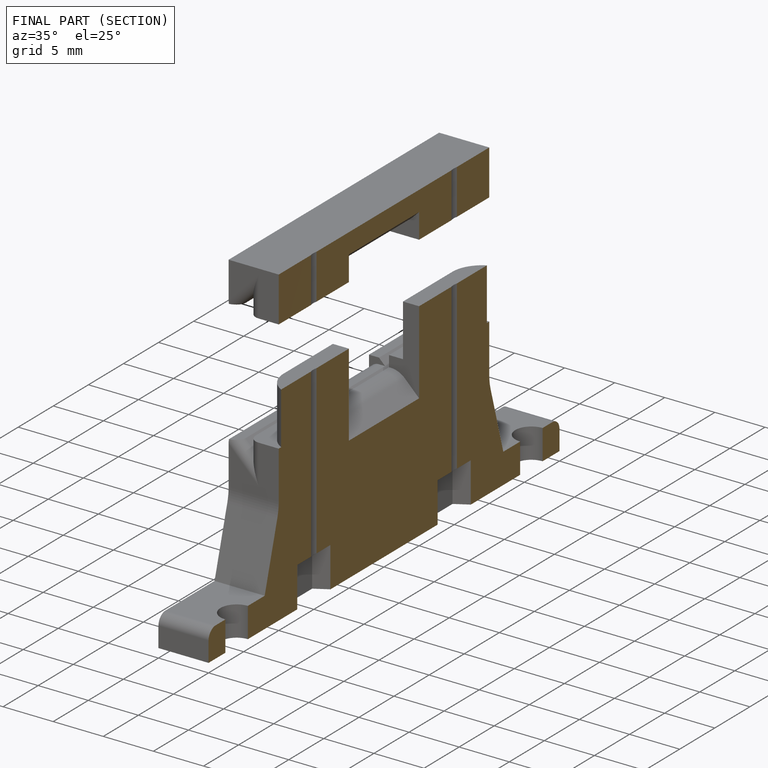
[diagram: finished part — half-section view (interior)]
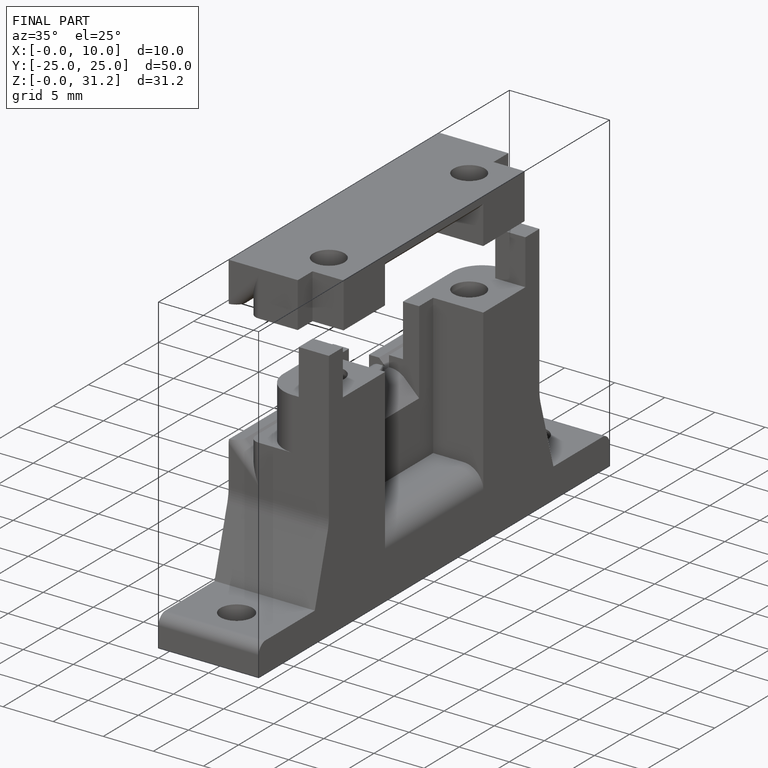
[diagram: finished part — iso view with bounding-box wireframe]
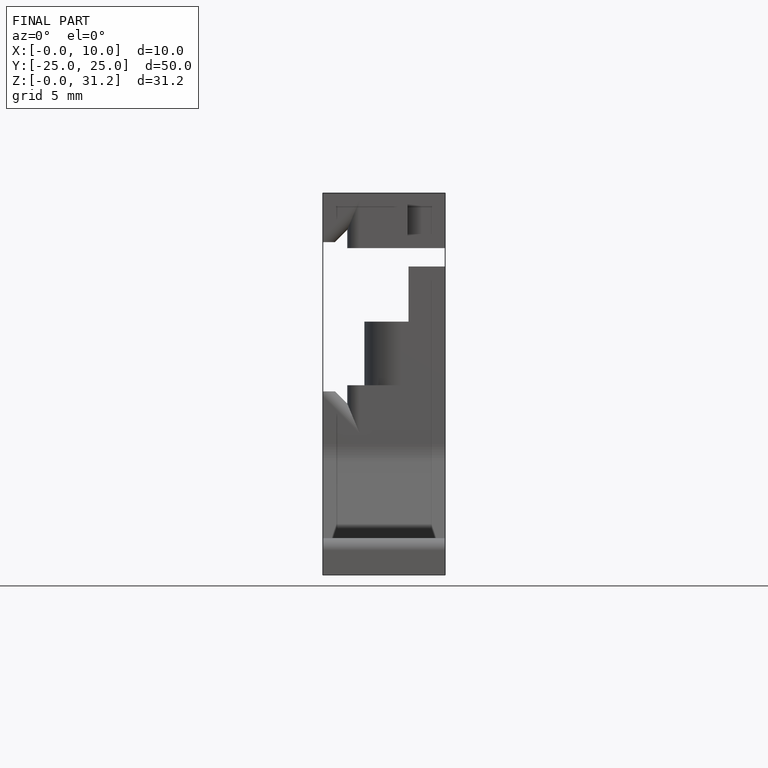
[diagram: finished part — front view with bounding-box wireframe]
